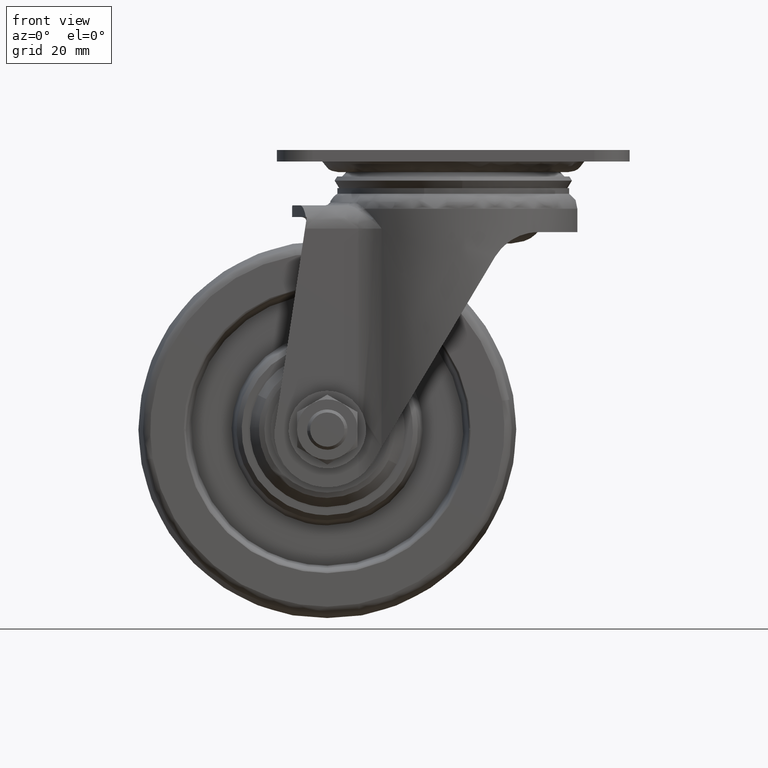
[diagram: clean part render]
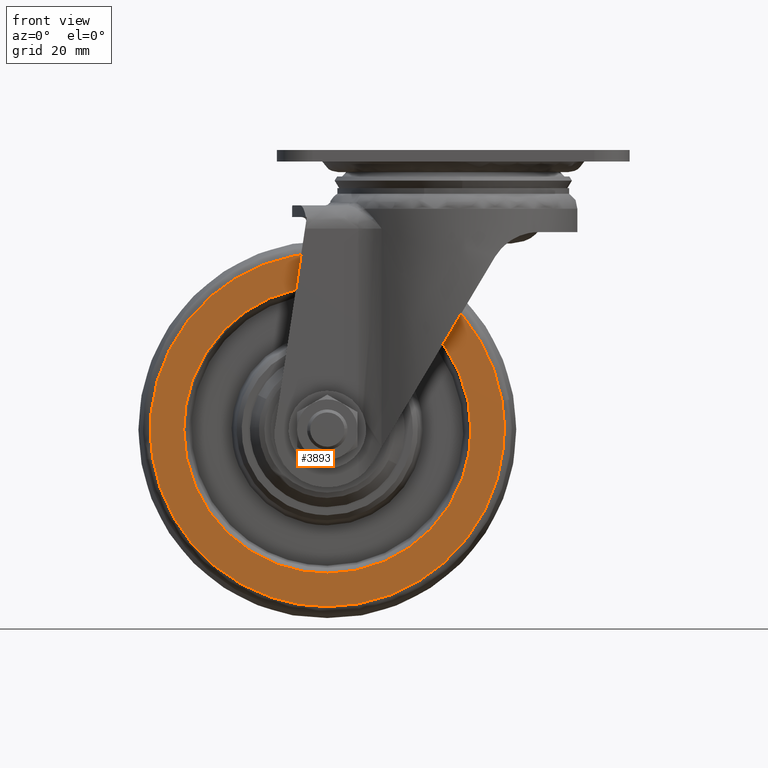
[diagram: same view with one face highlighted and labeled with its STEP entity id]
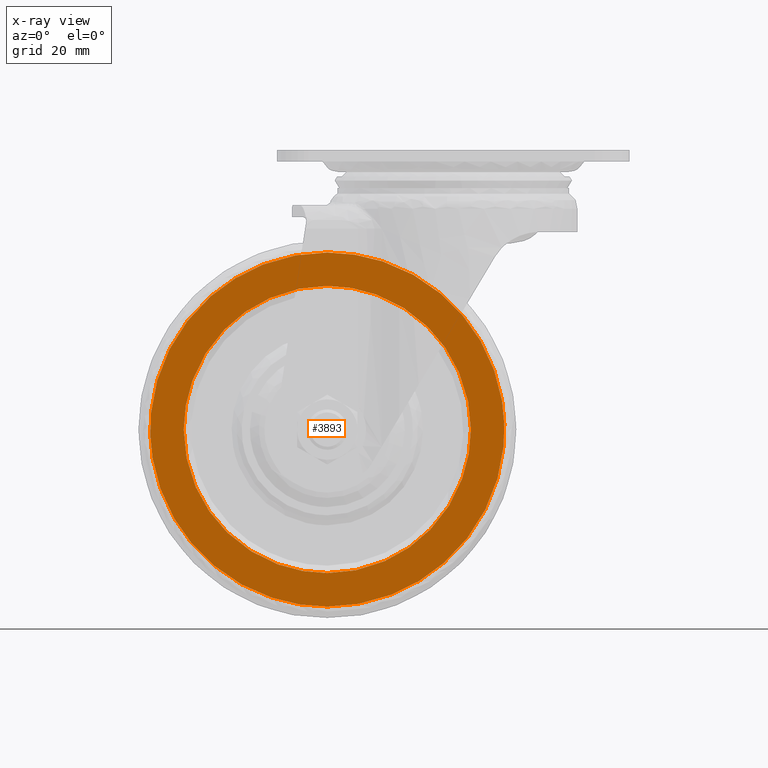
[diagram: x-ray of the same camera — body ghosted, the highlighted face saturated]
A machine part, front view. The second image highlights one B-rep face of the part: STEP entity #3893.
The next image is the same camera in x-ray: the body ghosted, the highlighted face saturated — about 0% of this face is hidden behind the body in this view.
In plain terms, the highlighted face is a freeform B-spline surface patch.
Its self-contained STEP definition (entity closure, byte-faithful):
#3619=CARTESIAN_POINT('',(9.671119914749667,-11.499999999999959,-49.785053829567218));
#3620=VERTEX_POINT('',#3619);
#3634=CARTESIAN_POINT('',(-25.0,-11.499999999999909,-90.638916999999424));
#3635=VERTEX_POINT('',#3634);
#3636=CARTESIAN_POINT('',(-25.0,-11.499999999999909,-90.638916999999424));
#3637=CARTESIAN_POINT('',(10.138962006513481,-11.499999999999931,-90.638916998925822));
#3638=CARTESIAN_POINT('',(10.138962014188371,-11.499999999999959,-55.499954997660652));
#3639=CARTESIAN_POINT('',(10.138962014816663,-11.499999999999957,-52.623354805882045));
#3640=CARTESIAN_POINT('',(9.671119914749667,-11.499999999999964,-49.785053829567218));
#3648=(BOUNDED_CURVE()B_SPLINE_CURVE(2,(#3636,#3637,#3638,#3639,#3640),.UNSPECIFIED.,.F.,.U.)B_SPLINE_CURVE_WITH_KNOTS((3,2,3),(0.0,0.250000000000000,0.277993891202102),.UNSPECIFIED.)CURVE()GEOMETRIC_REPRESENTATION_ITEM()RATIONAL_B_SPLINE_CURVE((1.0,0.707106781186548,1.0,0.967203116394811,0.941751131920916))REPRESENTATION_ITEM(''));
#3649=EDGE_CURVE('',#3635,#3620,#3648,.T.);
#3651=CARTESIAN_POINT('',(-59.671119914749667,-11.499999999999959,-61.214856170431403));
#3652=VERTEX_POINT('',#3651);
#3653=CARTESIAN_POINT('',(-59.671119914749667,-11.499999999999961,-61.214856170431403));
#3654=CARTESIAN_POINT('',(-54.821100637386124,-11.499999999999932,-90.638917001264488));
#3655=CARTESIAN_POINT('',(-25.0,-11.499999999999909,-90.638916999999424));
#3663=(BOUNDED_CURVE()B_SPLINE_CURVE(2,(#3653,#3654,#3655),.UNSPECIFIED.,.F.,.U.)B_SPLINE_CURVE_WITH_KNOTS((3,3),(0.777993891202102,1.0),.UNSPECIFIED.)CURVE()GEOMETRIC_REPRESENTATION_ITEM()RATIONAL_B_SPLINE_CURVE((0.941751131920916,0.739903664791736,1.0))REPRESENTATION_ITEM(''));
#3664=EDGE_CURVE('',#3652,#3635,#3663,.T.);
#3707=CARTESIAN_POINT('',(-25.0,-11.500000000000000,-20.360992999999219));
#3708=VERTEX_POINT('',#3707);
#3709=CARTESIAN_POINT('',(-25.0,-11.500000000000000,-20.360992999999219));
#3710=CARTESIAN_POINT('',(-60.138962006513481,-11.499999999999982,-20.360993001072814));
#3711=CARTESIAN_POINT('',(-60.138962014188358,-11.499999999999959,-55.499955002337970));
#3712=CARTESIAN_POINT('',(-60.138962014816656,-11.499999999999968,-58.376555194116555));
#3713=CARTESIAN_POINT('',(-59.671119914749667,-11.499999999999964,-61.214856170431389));
#3721=(BOUNDED_CURVE()B_SPLINE_CURVE(2,(#3709,#3710,#3711,#3712,#3713),.UNSPECIFIED.,.F.,.U.)B_SPLINE_CURVE_WITH_KNOTS((3,2,3),(0.500000000000000,0.750000000000000,0.777993891202102),.UNSPECIFIED.)CURVE()GEOMETRIC_REPRESENTATION_ITEM()RATIONAL_B_SPLINE_CURVE((1.0,0.707106781186548,1.0,0.967203116394811,0.941751131920916))REPRESENTATION_ITEM(''));
#3722=EDGE_CURVE('',#3708,#3652,#3721,.T.);
#3724=CARTESIAN_POINT('',(9.671119914749667,-11.499999999999964,-49.785053829567218));
#3725=CARTESIAN_POINT('',(4.821100637386099,-11.499999999999980,-20.360992998734165));
#3726=CARTESIAN_POINT('',(-25.0,-11.500000000000000,-20.360992999999219));
#3734=(BOUNDED_CURVE()B_SPLINE_CURVE(2,(#3724,#3725,#3726),.UNSPECIFIED.,.F.,.U.)B_SPLINE_CURVE_WITH_KNOTS((3,3),(0.277993891202102,0.500000000000000),.UNSPECIFIED.)CURVE()GEOMETRIC_REPRESENTATION_ITEM()RATIONAL_B_SPLINE_CURVE((0.941751131920916,0.739903664791736,1.0))REPRESENTATION_ITEM(''));
#3735=EDGE_CURVE('',#3620,#3708,#3734,.T.);
#3820=CARTESIAN_POINT('',(-63.647392134396270,-11.500000000000000,-16.850610832411459));
#3821=CARTESIAN_POINT('',(-63.647392134396270,-11.500000000000000,-94.149301052587987));
#3822=CARTESIAN_POINT('',(13.647394019301890,-11.500000000000000,-16.850610832411459));
#3823=CARTESIAN_POINT('',(13.647394019301890,-11.500000000000000,-94.149301052587987));
#3824=B_SPLINE_SURFACE_WITH_KNOTS('',1,1,((#3820,#3822),(#3821,#3823)),.UNSPECIFIED.,.F.,.F.,.U.,(2,2),(2,2),(0.0,77.298690220176525),(0.0,77.294786153698155),.UNSPECIFIED.);
#3825=ORIENTED_EDGE('',*,*,#3649,.T.);
#3826=ORIENTED_EDGE('',*,*,#3735,.T.);
#3827=ORIENTED_EDGE('',*,*,#3722,.T.);
#3828=ORIENTED_EDGE('',*,*,#3664,.T.);
#3829=EDGE_LOOP('',(#3825,#3826,#3827,#3828));
#3830=FACE_OUTER_BOUND('',#3829,.T.);
#3831=CARTESIAN_POINT('',(-25.0,-11.500000000000000,-26.999954999999321));
#3832=VERTEX_POINT('',#3831);
#3833=CARTESIAN_POINT('',(-53.499999998554877,-11.500000000000000,-55.499954999999318));
#3834=VERTEX_POINT('',#3833);
#3835=CARTESIAN_POINT('',(-25.0,-11.500000000000000,-26.999954999999321));
#3836=CARTESIAN_POINT('',(-53.499999999277442,-11.500000000000002,-26.999954999999325));
#3837=CARTESIAN_POINT('',(-53.499999998554877,-11.500000000000000,-55.499954999999318));
#3845=(BOUNDED_CURVE()B_SPLINE_CURVE(2,(#3835,#3836,#3837),.UNSPECIFIED.,.F.,.U.)B_SPLINE_CURVE_WITH_KNOTS((3,3),(0.500000000000000,0.750000000000000),.UNSPECIFIED.)CURVE()GEOMETRIC_REPRESENTATION_ITEM()RATIONAL_B_SPLINE_CURVE((1.0,0.707106781186547,1.0))REPRESENTATION_ITEM(''));
#3846=EDGE_CURVE('',#3832,#3834,#3845,.T.);
#3847=ORIENTED_EDGE('',*,*,#3846,.F.);
#3848=CARTESIAN_POINT('',(3.499999998554884,-11.500000000000000,-55.499954999999332));
#3849=VERTEX_POINT('',#3848);
#3850=CARTESIAN_POINT('',(3.499999998554884,-11.500000000000002,-55.499954999999325));
#3851=CARTESIAN_POINT('',(3.499999999277446,-11.500000000000004,-26.999954999999314));
#3852=CARTESIAN_POINT('',(-25.0,-11.500000000000000,-26.999954999999321));
#3860=(BOUNDED_CURVE()B_SPLINE_CURVE(2,(#3850,#3851,#3852),.UNSPECIFIED.,.F.,.U.)B_SPLINE_CURVE_WITH_KNOTS((3,3),(0.250000000000000,0.500000000000000),.UNSPECIFIED.)CURVE()GEOMETRIC_REPRESENTATION_ITEM()RATIONAL_B_SPLINE_CURVE((1.000000000000000,0.707106781186547,1.0))REPRESENTATION_ITEM(''));
#3861=EDGE_CURVE('',#3849,#3832,#3860,.T.);
#3862=ORIENTED_EDGE('',*,*,#3861,.F.);
#3863=CARTESIAN_POINT('',(-25.0,-11.500000000000000,-83.999954999999318));
#3864=VERTEX_POINT('',#3863);
#3865=CARTESIAN_POINT('',(-25.0,-11.500000000000000,-83.999954999999318));
#3866=CARTESIAN_POINT('',(3.499999999277439,-11.500000000000002,-83.999954999999318));
#3867=CARTESIAN_POINT('',(3.499999998554884,-11.500000000000000,-55.499954999999332));
#3875=(BOUNDED_CURVE()B_SPLINE_CURVE(2,(#3865,#3866,#3867),.UNSPECIFIED.,.F.,.U.)B_SPLINE_CURVE_WITH_KNOTS((3,3),(0.0,0.250000000000000),.UNSPECIFIED.)CURVE()GEOMETRIC_REPRESENTATION_ITEM()RATIONAL_B_SPLINE_CURVE((1.0,0.707106781186547,1.0))REPRESENTATION_ITEM(''));
#3876=EDGE_CURVE('',#3864,#3849,#3875,.T.);
#3877=ORIENTED_EDGE('',*,*,#3876,.F.);
#3878=CARTESIAN_POINT('',(-53.499999998554877,-11.500000000000000,-55.499954999999318));
#3879=CARTESIAN_POINT('',(-53.499999999277442,-11.500000000000002,-83.999954999999318));
#3880=CARTESIAN_POINT('',(-25.0,-11.500000000000000,-83.999954999999318));
#3888=(BOUNDED_CURVE()B_SPLINE_CURVE(2,(#3878,#3879,#3880),.UNSPECIFIED.,.F.,.U.)B_SPLINE_CURVE_WITH_KNOTS((3,3),(0.750000000000000,1.0),.UNSPECIFIED.)CURVE()GEOMETRIC_REPRESENTATION_ITEM()RATIONAL_B_SPLINE_CURVE((1.0,0.707106781186547,1.0))REPRESENTATION_ITEM(''));
#3889=EDGE_CURVE('',#3834,#3864,#3888,.T.);
#3890=ORIENTED_EDGE('',*,*,#3889,.F.);
#3891=EDGE_LOOP('',(#3847,#3862,#3877,#3890));
#3892=FACE_BOUND('',#3891,.T.);
#3893=ADVANCED_FACE('',(#3830,#3892),#3824,.T.);